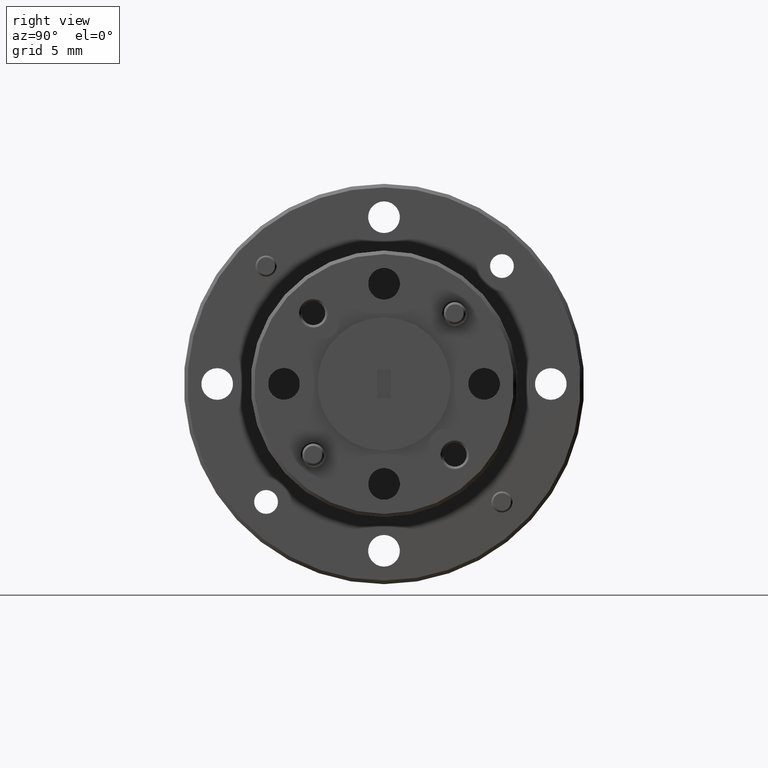
[diagram: clean part render]
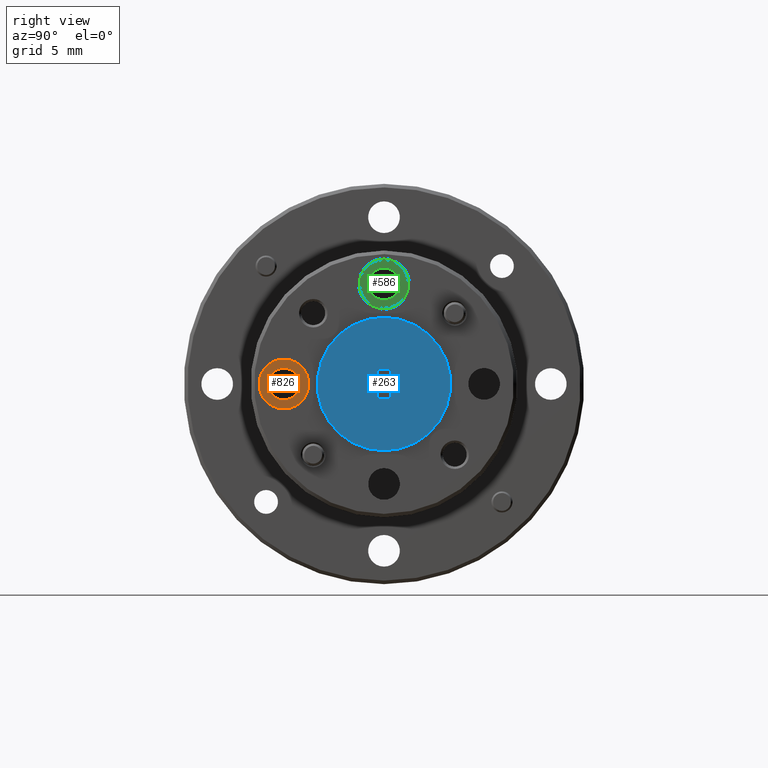
[diagram: same view with three faces highlighted in distinct colors, each labeled with its STEP entity id]
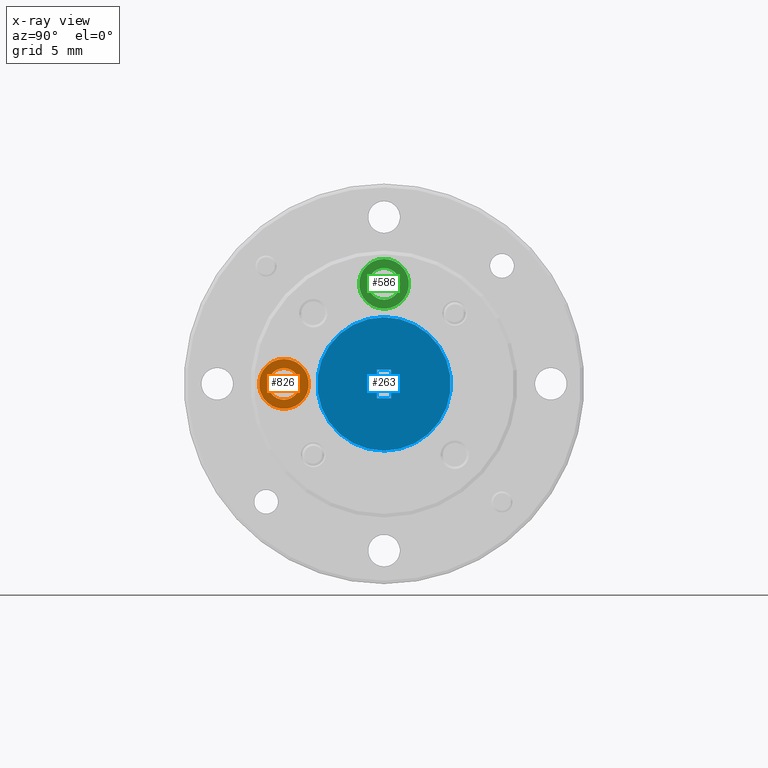
[diagram: x-ray of the same camera — body ghosted, the three highlighted faces saturated]
A machine part, right view with three faces highlighted in distinct colors.
The next image is the same camera in x-ray (body ghosted, the three faces saturated) — at least one of them is partly hidden behind the body in this view.
Their STEP definitions:

[orange] entity #826 — the highlighted planar face has unit normal (-1, 0, 0).
#86 = FACE_OUTER_BOUND ( 'NONE', #3474, .T. ) ;
#141 = DIRECTION ( 'NONE',  ( -1.000000000000000000, 1.214504284265894100E-046, 1.479334085402691900E-046 ) ) ;
#156 = DIRECTION ( 'NONE',  ( 0.0000000000000000000, 0.0000000000000000000, 1.000000000000000000 ) ) ;
#173 = DIRECTION ( 'NONE',  ( 1.000000000000000000, -1.214504284265894100E-046, 1.479334085402692200E-046 ) ) ;
#433 = DIRECTION ( 'NONE',  ( 1.479334085402691900E-046, 0.0000000000000000000, 1.000000000000000000 ) ) ;
#527 = CARTESIAN_POINT ( 'NONE',  ( -1.450299588133232300, 0.4315032445995203300, 0.5630281580648324200 ) ) ;
#542 = AXIS2_PLACEMENT_3D ( 'NONE', #1644, #141, #433 ) ;
#583 = AXIS2_PLACEMENT_3D ( 'NONE', #2066, #2325, #2976 ) ;
#630 = CIRCLE ( 'NONE', #885, 0.04449999999999975500 ) ;
#826 = ADVANCED_FACE ( 'NONE', ( #86, #1296 ), #3495, .F. ) ;
#875 = ORIENTED_EDGE ( 'NONE', *, *, #3617, .T. ) ;
#885 = AXIS2_PLACEMENT_3D ( 'NONE', #3286, #2042, #1780 ) ;
#959 = ORIENTED_EDGE ( 'NONE', *, *, #3204, .T. ) ;
#1030 = CIRCLE ( 'NONE', #583, 0.07000000000000000700 ) ;
#1165 = CARTESIAN_POINT ( 'NONE',  ( -1.450299588133232300, 0.4315032445995203300, 0.5885281580648326100 ) ) ;
#1296 = FACE_BOUND ( 'NONE', #2264, .T. ) ;
#1317 = CARTESIAN_POINT ( 'NONE',  ( -1.450299588133232300, 0.4315032445995203300, 0.5185281580648326600 ) ) ;
#1326 = CARTESIAN_POINT ( 'NONE',  ( -1.450299588133232300, 0.4315032445995203300, 0.5185281580648326600 ) ) ;
#1332 = VERTEX_POINT ( 'NONE', #527 ) ;
#1356 = EDGE_CURVE ( 'NONE', #1332, #3634, #630, .T. ) ;
#1391 = VERTEX_POINT ( 'NONE', #1165 ) ;
#1474 = CIRCLE ( 'NONE', #3252, 0.04449999999999975500 ) ;
#1565 = VERTEX_POINT ( 'NONE', #3469 ) ;
#1644 = CARTESIAN_POINT ( 'NONE',  ( -1.450299588133232300, 0.4315032445995203300, 0.5185281580648326600 ) ) ;
#1673 = DIRECTION ( 'NONE',  ( 1.000000000000000000, -1.214504284265894100E-046, 1.479334085402692200E-046 ) ) ;
#1780 = DIRECTION ( 'NONE',  ( 0.0000000000000000000, 0.0000000000000000000, 1.000000000000000000 ) ) ;
#1813 = ORIENTED_EDGE ( 'NONE', *, *, #1356, .F. ) ;
#2042 = DIRECTION ( 'NONE',  ( 1.000000000000000000, -1.214504284265894100E-046, 1.479334085402692200E-046 ) ) ;
#2066 = CARTESIAN_POINT ( 'NONE',  ( -1.450299588133232300, 0.4315032445995203300, 0.5185281580648326600 ) ) ;
#2264 = EDGE_LOOP ( 'NONE', ( #3349, #1813 ) ) ;
#2325 = DIRECTION ( 'NONE',  ( 1.000000000000000000, -1.214504284265894100E-046, 1.479334085402692200E-046 ) ) ;
#2394 = CIRCLE ( 'NONE', #2644, 0.07000000000000000700 ) ;
#2631 = DIRECTION ( 'NONE',  ( 0.0000000000000000000, 0.0000000000000000000, -1.000000000000000000 ) ) ;
#2644 = AXIS2_PLACEMENT_3D ( 'NONE', #1317, #173, #2631 ) ;
#2976 = DIRECTION ( 'NONE',  ( 0.0000000000000000000, 0.0000000000000000000, -1.000000000000000000 ) ) ;
#3204 = EDGE_CURVE ( 'NONE', #1391, #1565, #1030, .T. ) ;
#3252 = AXIS2_PLACEMENT_3D ( 'NONE', #1326, #1673, #156 ) ;
#3271 = CARTESIAN_POINT ( 'NONE',  ( -1.450299588133232300, 0.4315032445995203300, 0.4740281580648328400 ) ) ;
#3286 = CARTESIAN_POINT ( 'NONE',  ( -1.450299588133232300, 0.4315032445995203300, 0.5185281580648326600 ) ) ;
#3349 = ORIENTED_EDGE ( 'NONE', *, *, #3701, .F. ) ;
#3469 = CARTESIAN_POINT ( 'NONE',  ( -1.450299588133232300, 0.4315032445995203300, 0.4485281580648325900 ) ) ;
#3474 = EDGE_LOOP ( 'NONE', ( #875, #959 ) ) ;
#3495 = PLANE ( 'NONE',  #542 ) ;
#3617 = EDGE_CURVE ( 'NONE', #1565, #1391, #2394, .T. ) ;
#3634 = VERTEX_POINT ( 'NONE', #3271 ) ;
#3701 = EDGE_CURVE ( 'NONE', #3634, #1332, #1474, .T. ) ;

[blue] entity #263 — the highlighted planar face has unit normal (-1, 0, 0).
#138 = EDGE_CURVE ( 'NONE', #635, #1127, #1798, .T. ) ;
#188 = DIRECTION ( 'NONE',  ( 1.479334085402691900E-046, 0.0000000000000000000, 1.000000000000000000 ) ) ;
#263 = ADVANCED_FACE ( 'NONE', ( #689, #2843 ), #2347, .F. ) ;
#272 = CARTESIAN_POINT ( 'NONE',  ( -1.400299588133232700, 0.6927532445995202600, 0.4785281580648326200 ) ) ;
#354 = DIRECTION ( 'NONE',  ( -1.000000000000000000, 1.214504284265894100E-046, -1.479334085402692200E-046 ) ) ;
#378 = CARTESIAN_POINT ( 'NONE',  ( -1.400299588133232700, 0.6927532445995202600, 0.5585281580648326900 ) ) ;
#416 = EDGE_CURVE ( 'NONE', #1223, #3658, #3229, .T. ) ;
#443 = LINE ( 'NONE', #378, #3177 ) ;
#635 = VERTEX_POINT ( 'NONE', #1692 ) ;
#664 = CARTESIAN_POINT ( 'NONE',  ( -1.400299588133232700, 0.7327532445995204000, 0.4785281580648326200 ) ) ;
#689 = FACE_BOUND ( 'NONE', #2757, .T. ) ;
#744 = AXIS2_PLACEMENT_3D ( 'NONE', #2364, #1111, #188 ) ;
#776 = VECTOR ( 'NONE', #2413, 39.37007874015748100 ) ;
#978 = DIRECTION ( 'NONE',  ( 1.479334085402691900E-046, -1.067128122525102700E-016, 1.000000000000000000 ) ) ;
#1024 = DIRECTION ( 'NONE',  ( -1.214504284265893900E-046, 1.000000000000000000, 0.0000000000000000000 ) ) ;
#1029 = AXIS2_PLACEMENT_3D ( 'NONE', #2478, #354, #3739 ) ;
#1111 = DIRECTION ( 'NONE',  ( -1.000000000000000000, 1.214504284265894100E-046, 1.479334085402691900E-046 ) ) ;
#1127 = VERTEX_POINT ( 'NONE', #3224 ) ;
#1223 = VERTEX_POINT ( 'NONE', #2031 ) ;
#1287 = DIRECTION ( 'NONE',  ( 1.214504284265893900E-046, -1.000000000000000000, 0.0000000000000000000 ) ) ;
#1432 = LINE ( 'NONE', #3473, #1966 ) ;
#1433 = ORIENTED_EDGE ( 'NONE', *, *, #1918, .F. ) ;
#1617 = CARTESIAN_POINT ( 'NONE',  ( -1.400299588133232700, 0.7327532445995204000, 0.4785281580648326200 ) ) ;
#1692 = CARTESIAN_POINT ( 'NONE',  ( -1.400299588133232700, 0.7127532445995203900, 0.3310281580648326600 ) ) ;
#1798 = CIRCLE ( 'NONE', #1029, 0.1874999999999999700 ) ;
#1868 = DIRECTION ( 'NONE',  ( 0.0000000000000000000, 0.0000000000000000000, 1.000000000000000000 ) ) ;
#1887 = DIRECTION ( 'NONE',  ( -1.000000000000000000, 1.214504284265894100E-046, -1.479334085402692200E-046 ) ) ;
#1918 = EDGE_CURVE ( 'NONE', #1127, #635, #2914, .T. ) ;
#1966 = VECTOR ( 'NONE', #1024, 39.37007874015748100 ) ;
#2031 = CARTESIAN_POINT ( 'NONE',  ( -1.400299588133232700, 0.6927532445995202600, 0.5585281580648326900 ) ) ;
#2308 = VERTEX_POINT ( 'NONE', #3633 ) ;
#2347 = PLANE ( 'NONE',  #744 ) ;
#2350 = VECTOR ( 'NONE', #978, 39.37007874015748100 ) ;
#2364 = CARTESIAN_POINT ( 'NONE',  ( -1.400299588133232700, 0.9002532445995203900, 0.5185281580648326600 ) ) ;
#2413 = DIRECTION ( 'NONE',  ( -1.479334085402691900E-046, 1.067128122525102700E-016, -1.000000000000000000 ) ) ;
#2478 = CARTESIAN_POINT ( 'NONE',  ( -1.400299588133232700, 0.7127532445995203900, 0.5185281580648326600 ) ) ;
#2496 = EDGE_CURVE ( 'NONE', #2308, #1223, #443, .T. ) ;
#2503 = CARTESIAN_POINT ( 'NONE',  ( -1.400299588133232700, 0.7127532445995203900, 0.5185281580648326600 ) ) ;
#2564 = ORIENTED_EDGE ( 'NONE', *, *, #2705, .F. ) ;
#2705 = EDGE_CURVE ( 'NONE', #3658, #2934, #1432, .T. ) ;
#2757 = EDGE_LOOP ( 'NONE', ( #2847, #2909, #3921, #2564 ) ) ;
#2843 = FACE_OUTER_BOUND ( 'NONE', #3647, .T. ) ;
#2847 = ORIENTED_EDGE ( 'NONE', *, *, #416, .F. ) ;
#2891 = EDGE_CURVE ( 'NONE', #2934, #2308, #3029, .T. ) ;
#2909 = ORIENTED_EDGE ( 'NONE', *, *, #2496, .F. ) ;
#2914 = CIRCLE ( 'NONE', #3589, 0.1874999999999999700 ) ;
#2934 = VERTEX_POINT ( 'NONE', #1617 ) ;
#3029 = LINE ( 'NONE', #664, #2350 ) ;
#3139 = ORIENTED_EDGE ( 'NONE', *, *, #138, .F. ) ;
#3177 = VECTOR ( 'NONE', #1287, 39.37007874015748100 ) ;
#3224 = CARTESIAN_POINT ( 'NONE',  ( -1.400299588133232700, 0.7127532445995203900, 0.7060281580648325500 ) ) ;
#3229 = LINE ( 'NONE', #3637, #776 ) ;
#3473 = CARTESIAN_POINT ( 'NONE',  ( -1.400299588133232700, 0.6927532445995202600, 0.4785281580648326200 ) ) ;
#3589 = AXIS2_PLACEMENT_3D ( 'NONE', #2503, #1887, #1868 ) ;
#3633 = CARTESIAN_POINT ( 'NONE',  ( -1.400299588133232700, 0.7327532445995204000, 0.5585281580648325800 ) ) ;
#3637 = CARTESIAN_POINT ( 'NONE',  ( -1.400299588133232700, 0.6927532445995202600, 0.4785281580648326200 ) ) ;
#3647 = EDGE_LOOP ( 'NONE', ( #1433, #3139 ) ) ;
#3658 = VERTEX_POINT ( 'NONE', #272 ) ;
#3739 = DIRECTION ( 'NONE',  ( 0.0000000000000000000, 0.0000000000000000000, 1.000000000000000000 ) ) ;
#3921 = ORIENTED_EDGE ( 'NONE', *, *, #2891, .F. ) ;

[green] entity #586 — the highlighted planar face has unit normal (-1, 0, 0).
#322 = AXIS2_PLACEMENT_3D ( 'NONE', #2725, #3706, #1841 ) ;
#419 = EDGE_CURVE ( 'NONE', #1026, #3783, #723, .T. ) ;
#450 = CIRCLE ( 'NONE', #3612, 0.06999999999999993700 ) ;
#479 = DIRECTION ( 'NONE',  ( 1.000000000000000000, -1.214504284265894100E-046, 1.479334085402692200E-046 ) ) ;
#505 = CARTESIAN_POINT ( 'NONE',  ( -1.450299588133232300, 0.7127532445995203900, 0.7997781580648326600 ) ) ;
#514 = CIRCLE ( 'NONE', #3004, 0.04449999999999975500 ) ;
#546 = DIRECTION ( 'NONE',  ( 1.000000000000000000, -1.214504284265894100E-046, 1.479334085402692200E-046 ) ) ;
#586 = ADVANCED_FACE ( 'NONE', ( #1443, #3438 ), #2149, .F. ) ;
#613 = CARTESIAN_POINT ( 'NONE',  ( -1.450299588133232300, 0.7127532445995203900, 0.7997781580648326600 ) ) ;
#723 = CIRCLE ( 'NONE', #3786, 0.04449999999999975500 ) ;
#775 = AXIS2_PLACEMENT_3D ( 'NONE', #613, #2765, #1894 ) ;
#838 = CARTESIAN_POINT ( 'NONE',  ( -1.450299588133232300, 0.7127532445995203900, 0.7997781580648326600 ) ) ;
#1026 = VERTEX_POINT ( 'NONE', #2862 ) ;
#1086 = EDGE_CURVE ( 'NONE', #3132, #3643, #450, .T. ) ;
#1143 = DIRECTION ( 'NONE',  ( 0.0000000000000000000, 0.0000000000000000000, 1.000000000000000000 ) ) ;
#1168 = CARTESIAN_POINT ( 'NONE',  ( -1.450299588133232300, 0.7127532445995203900, 0.8442781580648324200 ) ) ;
#1267 = EDGE_LOOP ( 'NONE', ( #2542, #3595 ) ) ;
#1443 = FACE_OUTER_BOUND ( 'NONE', #3568, .T. ) ;
#1464 = DIRECTION ( 'NONE',  ( 1.000000000000000000, -1.214504284265894100E-046, 1.479334085402692200E-046 ) ) ;
#1770 = ORIENTED_EDGE ( 'NONE', *, *, #1086, .T. ) ;
#1841 = DIRECTION ( 'NONE',  ( 0.0000000000000000000, 0.0000000000000000000, -1.000000000000000000 ) ) ;
#1894 = DIRECTION ( 'NONE',  ( 1.479334085402691900E-046, 0.0000000000000000000, 1.000000000000000000 ) ) ;
#1989 = ORIENTED_EDGE ( 'NONE', *, *, #3390, .T. ) ;
#2149 = PLANE ( 'NONE',  #775 ) ;
#2542 = ORIENTED_EDGE ( 'NONE', *, *, #419, .F. ) ;
#2711 = DIRECTION ( 'NONE',  ( 0.0000000000000000000, 0.0000000000000000000, 1.000000000000000000 ) ) ;
#2725 = CARTESIAN_POINT ( 'NONE',  ( -1.450299588133232300, 0.7127532445995203900, 0.7997781580648326600 ) ) ;
#2765 = DIRECTION ( 'NONE',  ( -1.000000000000000000, 1.214504284265894100E-046, 1.479334085402691900E-046 ) ) ;
#2862 = CARTESIAN_POINT ( 'NONE',  ( -1.450299588133232300, 0.7127532445995203900, 0.7552781580648328900 ) ) ;
#3004 = AXIS2_PLACEMENT_3D ( 'NONE', #3338, #1464, #2711 ) ;
#3124 = EDGE_CURVE ( 'NONE', #3783, #1026, #514, .T. ) ;
#3132 = VERTEX_POINT ( 'NONE', #3602 ) ;
#3272 = DIRECTION ( 'NONE',  ( 0.0000000000000000000, 0.0000000000000000000, -1.000000000000000000 ) ) ;
#3338 = CARTESIAN_POINT ( 'NONE',  ( -1.450299588133232300, 0.7127532445995203900, 0.7997781580648326600 ) ) ;
#3390 = EDGE_CURVE ( 'NONE', #3643, #3132, #3735, .T. ) ;
#3438 = FACE_BOUND ( 'NONE', #1267, .T. ) ;
#3568 = EDGE_LOOP ( 'NONE', ( #1989, #1770 ) ) ;
#3595 = ORIENTED_EDGE ( 'NONE', *, *, #3124, .F. ) ;
#3602 = CARTESIAN_POINT ( 'NONE',  ( -1.450299588133232300, 0.7127532445995203900, 0.8697781580648326100 ) ) ;
#3612 = AXIS2_PLACEMENT_3D ( 'NONE', #505, #479, #3272 ) ;
#3643 = VERTEX_POINT ( 'NONE', #3924 ) ;
#3706 = DIRECTION ( 'NONE',  ( 1.000000000000000000, -1.214504284265894100E-046, 1.479334085402692200E-046 ) ) ;
#3735 = CIRCLE ( 'NONE', #322, 0.06999999999999993700 ) ;
#3783 = VERTEX_POINT ( 'NONE', #1168 ) ;
#3786 = AXIS2_PLACEMENT_3D ( 'NONE', #838, #546, #1143 ) ;
#3924 = CARTESIAN_POINT ( 'NONE',  ( -1.450299588133232300, 0.7127532445995203900, 0.7297781580648327000 ) ) ;